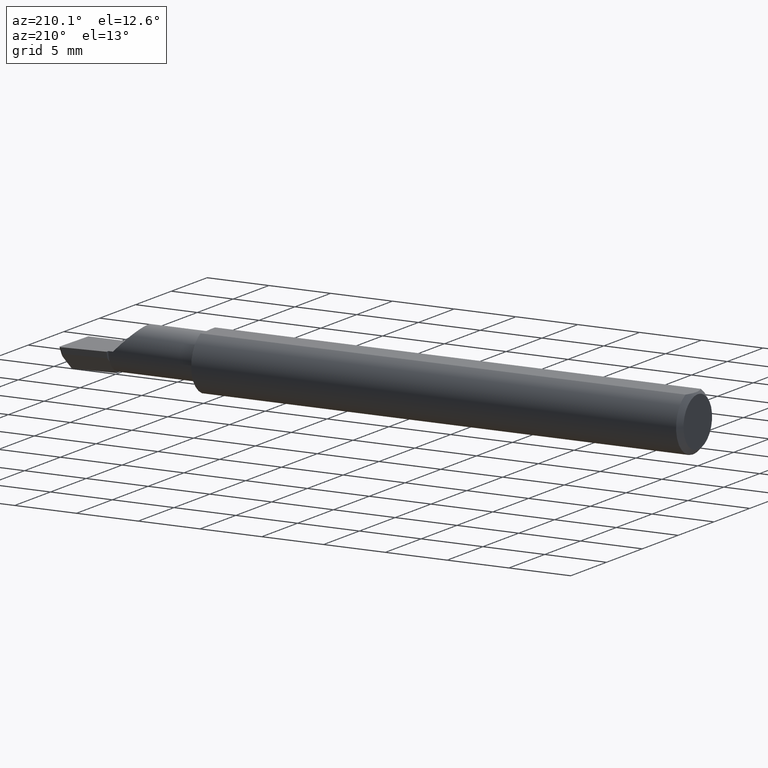
[diagram: clean part render]
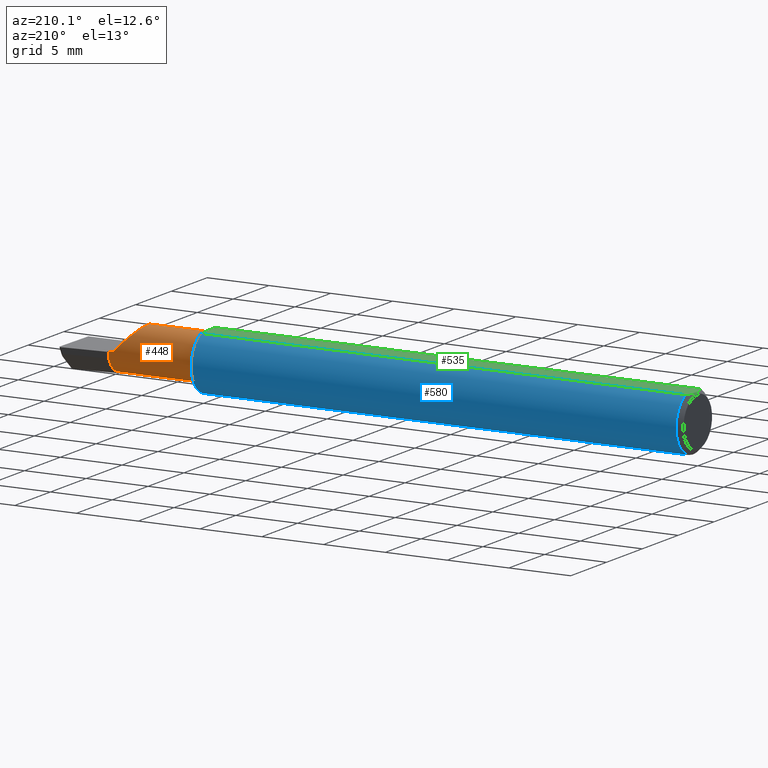
[diagram: same view with three faces highlighted in distinct colors, each labeled with its STEP entity id]
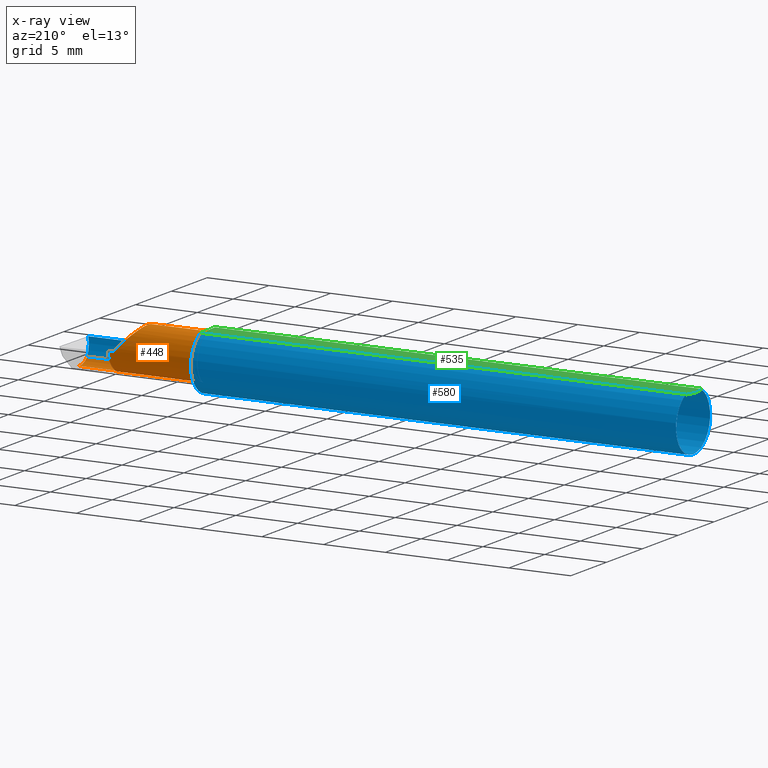
[diagram: x-ray of the same camera — body ghosted, the three highlighted faces saturated]
A machine part, auxiliary view with three faces highlighted in distinct colors.
The next image is the same camera in x-ray (body ghosted, the three faces saturated) — at least one of them is partly hidden behind the body in this view.
Their STEP definitions:

[orange] entity #448 — the highlighted cylindrical surface (edge-blend (fillet) strip) has radius 1.8009 mm, axis along (-1, -0, -0).
#6 = CARTESIAN_POINT ( 'NONE',  ( 1.854999999999999982, -0.03049999999999999586, 0.0000000000000000000 ) ) ;
#12 = VERTEX_POINT ( 'NONE', #555 ) ;
#23 = CARTESIAN_POINT ( 'NONE',  ( 1.988806546520622609, -0.03049999999999999586, -0.07090000000000000469 ) ) ;
#24 = VERTEX_POINT ( 'NONE', #108 ) ;
#27 = CARTESIAN_POINT ( 'NONE',  ( 1.584999999999999964, -0.07646557377049212345, 0.05398125626501703439 ) ) ;
#32 = CIRCLE ( 'NONE', #240, 0.07089999999999997693 ) ;
#40 = VERTEX_POINT ( 'NONE', #129 ) ;
#46 = CARTESIAN_POINT ( 'NONE',  ( 1.988806546520622609, -0.03049999999999999586, -0.07090000000000000469 ) ) ;
#47 = AXIS2_PLACEMENT_3D ( 'NONE', #450, #187, #179 ) ;
#48 = CARTESIAN_POINT ( 'NONE',  ( 1.769987205483423143, 0.04039999999999997066, 0.07001279451657603514 ) ) ;
#54 = CARTESIAN_POINT ( 'NONE',  ( 1.989680968235101988, -0.07646557377049188753, -0.05398125626501726337 ) ) ;
#55 = ORIENTED_EDGE ( 'NONE', *, *, #561, .F. ) ;
#72 = CARTESIAN_POINT ( 'NONE',  ( 1.854999999999999982, -0.03049999999999999586, 0.0000000000000000000 ) ) ;
#83 = CARTESIAN_POINT ( 'NONE',  ( 1.786018743734982150, -0.07646557377049197080, 0.05398125626501716623 ) ) ;
#84 = ORIENTED_EDGE ( 'NONE', *, *, #311, .T. ) ;
#89 = DIRECTION ( 'NONE',  ( -1.000000000000000000, -4.268512490100411279E-18, -0.0000000000000000000 ) ) ;
#107 = EDGE_CURVE ( 'NONE', #435, #40, #649, .T. ) ;
#108 = CARTESIAN_POINT ( 'NONE',  ( 1.854999999999999982, -0.03049999999999999586, -0.07090000000000000469 ) ) ;
#109 = DIRECTION ( 'NONE',  ( 0.0000000000000000000, -1.000000000000000000, 0.0000000000000000000 ) ) ;
#111 = LINE ( 'NONE', #486, #340 ) ;
#121 = VERTEX_POINT ( 'NONE', #83 ) ;
#129 = CARTESIAN_POINT ( 'NONE',  ( 1.854999999999999982, 0.04040000000000000535, 1.030335658007946440E-15 ) ) ;
#146 = ORIENTED_EDGE ( 'NONE', *, *, #385, .T. ) ;
#147 =( BOUNDED_CURVE ( )  B_SPLINE_CURVE ( 3, ( #244, #544, #48, #216 ),
 .UNSPECIFIED., .F., .T. ) 
 B_SPLINE_CURVE_WITH_KNOTS ( ( 4, 4 ),
 ( 5.577815324852163137, 7.853981633974482790 ),
 .UNSPECIFIED. ) 
 CURVE ( )  GEOMETRIC_REPRESENTATION_ITEM ( )  RATIONAL_B_SPLINE_CURVE ( ( 1.000000000000000000, 0.6128902971210721251, 0.6128902971210721251, 1.000000000000000000 ) ) 
 REPRESENTATION_ITEM ( '' )  );
#150 = CARTESIAN_POINT ( 'NONE',  ( -3.026375355475530641E-19, 0.04039999999999996372, 1.030335658007946046E-15 ) ) ;
#151 = DIRECTION ( 'NONE',  ( 1.000000000000000000, 4.268512490100411279E-18, 0.0000000000000000000 ) ) ;
#156 = VERTEX_POINT ( 'NONE', #46 ) ;
#160 = DIRECTION ( 'NONE',  ( 1.000000000000000000, 4.268512490100411279E-18, 0.0000000000000000000 ) ) ;
#170 = CARTESIAN_POINT ( 'NONE',  ( 2.000000000000000000, -0.03049999999999999586, -0.07090000000000000469 ) ) ;
#171 = ORIENTED_EDGE ( 'NONE', *, *, #430, .T. ) ;
#179 = DIRECTION ( 'NONE',  ( 0.0000000000000000000, -1.000000000000000000, 0.0000000000000000000 ) ) ;
#183 = CIRCLE ( 'NONE', #47, 0.07089999999999996305 ) ;
#184 = VECTOR ( 'NONE', #160, 39.37007874015748143 ) ;
#187 = DIRECTION ( 'NONE',  ( -1.000000000000000000, -4.268512490100411279E-18, -0.0000000000000000000 ) ) ;
#191 = CARTESIAN_POINT ( 'NONE',  ( 0.0000000000000000000, -0.03050000000000000627, 0.0000000000000000000 ) ) ;
#216 = CARTESIAN_POINT ( 'NONE',  ( 1.840000000000000080, 0.04039999999999989433, 1.959434878635762025E-17 ) ) ;
#218 = CARTESIAN_POINT ( 'NONE',  ( 1.989680968235101988, -0.07646557377049188753, -0.05398125626501726337 ) ) ;
#225 = LINE ( 'NONE', #170, #254 ) ;
#240 = AXIS2_PLACEMENT_3D ( 'NONE', #6, #299, #109 ) ;
#244 = CARTESIAN_POINT ( 'NONE',  ( 1.786018743734982150, -0.07646557377049197080, 0.05398125626501716623 ) ) ;
#247 = CARTESIAN_POINT ( 'NONE',  ( 1.584999999999999964, -0.07646557377049209570, -0.05398125626501706908 ) ) ;
#254 = VECTOR ( 'NONE', #466, 39.37007874015748143 ) ;
#262 = CARTESIAN_POINT ( 'NONE',  ( 1.988360720229885636, -0.04752541915734222189, -0.07089999999999997693 ) ) ;
#284 = LINE ( 'NONE', #406, #184 ) ;
#285 = DIRECTION ( 'NONE',  ( 4.268512490100412049E-18, -1.000000000000000000, 0.0000000000000000000 ) ) ;
#286 = DIRECTION ( 'NONE',  ( 0.0000000000000000000, -1.000000000000000000, 0.0000000000000000000 ) ) ;
#299 = DIRECTION ( 'NONE',  ( 1.000000000000000000, 4.268512490100411279E-18, 0.0000000000000000000 ) ) ;
#300 = DIRECTION ( 'NONE',  ( -1.000000000000000000, -4.268512490100411279E-18, -0.0000000000000000000 ) ) ;
#311 = EDGE_CURVE ( 'NONE', #40, #333, #518, .T. ) ;
#314 = CARTESIAN_POINT ( 'NONE',  ( 1.854999999999999982, -0.03049999999999999586, 0.0000000000000000000 ) ) ;
#319 = AXIS2_PLACEMENT_3D ( 'NONE', #191, #608, #285 ) ;
#328 = CARTESIAN_POINT ( 'NONE',  ( 1.840000000000000080, 0.04039999999999989433, 1.959434878635762025E-17 ) ) ;
#333 = VERTEX_POINT ( 'NONE', #436 ) ;
#334 = FACE_OUTER_BOUND ( 'NONE', #551, .T. ) ;
#335 = AXIS2_PLACEMENT_3D ( 'NONE', #72, #89, #571 ) ;
#340 = VECTOR ( 'NONE', #592, 39.37007874015748143 ) ;
#346 = VECTOR ( 'NONE', #151, 39.37007874015748143 ) ;
#366 = ORIENTED_EDGE ( 'NONE', *, *, #107, .T. ) ;
#385 = EDGE_CURVE ( 'NONE', #614, #121, #284, .T. ) ;
#394 = AXIS2_PLACEMENT_3D ( 'NONE', #314, #300, #286 ) ;
#406 = CARTESIAN_POINT ( 'NONE',  ( 1.719999999999999973, -0.07646557377049188753, 0.05398125626501726337 ) ) ;
#419 = CARTESIAN_POINT ( 'NONE',  ( 1.988664666329833519, -0.06350290078668616167, -0.06501910055627763141 ) ) ;
#423 = VERTEX_POINT ( 'NONE', #54 ) ;
#430 = EDGE_CURVE ( 'NONE', #121, #435, #147, .T. ) ;
#435 = VERTEX_POINT ( 'NONE', #328 ) ;
#436 = CARTESIAN_POINT ( 'NONE',  ( 1.854999999999999982, 0.03289115998609075386, -0.03175485530777685805 ) ) ;
#448 = ADVANCED_FACE ( 'NONE', ( #334 ), #610, .T. ) ;
#449 = VERTEX_POINT ( 'NONE', #247 ) ;
#450 = CARTESIAN_POINT ( 'NONE',  ( 1.584999999999999964, -0.03049999999999999586, 0.0000000000000000000 ) ) ;
#460 =( BOUNDED_CURVE ( )  B_SPLINE_CURVE ( 3, ( #218, #419, #262, #23 ),
 .UNSPECIFIED., .F., .T. ) 
 B_SPLINE_CURVE_WITH_KNOTS ( ( 4, 4 ),
 ( 5.787864769132275100, 6.493234751459696419 ),
 .UNSPECIFIED. ) 
 CURVE ( )  GEOMETRIC_REPRESENTATION_ITEM ( )  RATIONAL_B_SPLINE_CURVE ( ( 1.000000000000000000, 0.9589657668801496726, 0.9589657668801496726, 1.000000000000000000 ) ) 
 REPRESENTATION_ITEM ( '' )  );
#466 = DIRECTION ( 'NONE',  ( -1.000000000000000000, 5.691349986800549142E-18, -0.0000000000000000000 ) ) ;
#486 = CARTESIAN_POINT ( 'NONE',  ( 1.719999999999999973, -0.07646557377049188753, -0.05398125626501726337 ) ) ;
#518 = CIRCLE ( 'NONE', #394, 0.07089999999999999081 ) ;
#544 = CARTESIAN_POINT ( 'NONE',  ( 1.740628359091399346, -0.02315981068686319075, 0.09937164090859931798 ) ) ;
#545 = EDGE_CURVE ( 'NONE', #423, #449, #111, .T. ) ;
#551 = EDGE_LOOP ( 'NONE', ( #55, #637, #578, #146, #171, #366, #84, #618, #651, #594 ) ) ;
#553 = EDGE_CURVE ( 'NONE', #12, #24, #633, .T. ) ;
#555 = CARTESIAN_POINT ( 'NONE',  ( 1.854999999999999982, 0.003160401389698424320, -0.06240021937689311377 ) ) ;
#561 = EDGE_CURVE ( 'NONE', #423, #156, #460, .T. ) ;
#571 = DIRECTION ( 'NONE',  ( 0.0000000000000000000, -1.000000000000000000, 0.0000000000000000000 ) ) ;
#578 = ORIENTED_EDGE ( 'NONE', *, *, #612, .F. ) ;
#586 = EDGE_CURVE ( 'NONE', #156, #24, #225, .T. ) ;
#592 = DIRECTION ( 'NONE',  ( -1.000000000000000000, -4.268512490100411279E-18, -0.0000000000000000000 ) ) ;
#594 = ORIENTED_EDGE ( 'NONE', *, *, #586, .F. ) ;
#602 = EDGE_CURVE ( 'NONE', #12, #333, #32, .T. ) ;
#608 = DIRECTION ( 'NONE',  ( -1.000000000000000000, -4.268512490100411279E-18, -0.0000000000000000000 ) ) ;
#610 = CYLINDRICAL_SURFACE ( 'NONE', #319, 0.07089999999999996305 ) ;
#612 = EDGE_CURVE ( 'NONE', #614, #449, #183, .T. ) ;
#614 = VERTEX_POINT ( 'NONE', #27 ) ;
#618 = ORIENTED_EDGE ( 'NONE', *, *, #602, .F. ) ;
#633 = CIRCLE ( 'NONE', #335, 0.07089999999999999081 ) ;
#637 = ORIENTED_EDGE ( 'NONE', *, *, #545, .T. ) ;
#649 = LINE ( 'NONE', #150, #346 ) ;
#651 = ORIENTED_EDGE ( 'NONE', *, *, #553, .T. ) ;

[blue] entity #580 — the highlighted cylindrical surface (edge-blend (fillet) strip) has radius 2.3774 mm, axis along (-1, -0, -0).
#25 = CARTESIAN_POINT ( 'NONE',  ( 1.572379481194433160, -0.06851133057105314450, -0.06386523205972809147 ) ) ;
#26 = DIRECTION ( 'NONE',  ( 0.0000000000000000000, 0.0000000000000000000, 1.000000000000000000 ) ) ;
#27 = CARTESIAN_POINT ( 'NONE',  ( 1.584999999999999964, -0.07646557377049212345, 0.05398125626501703439 ) ) ;
#31 = DIRECTION ( 'NONE',  ( -1.000000000000000000, -0.0000000000000000000, -0.0000000000000000000 ) ) ;
#37 = CARTESIAN_POINT ( 'NONE',  ( 1.577475890146723403, -0.07388913376859282400, 0.05747801488572825551 ) ) ;
#44 = CARTESIAN_POINT ( 'NONE',  ( 1.559999999999993392, -0.01550498344099977138, -0.09260523827686174825 ) ) ;
#53 = CARTESIAN_POINT ( 'NONE',  ( 1.568064680686318324, -0.06127374973417914344, -0.07108395546218125582 ) ) ;
#54 = CARTESIAN_POINT ( 'NONE',  ( 1.989680968235101988, -0.07646557377049188753, -0.05398125626501726337 ) ) ;
#56 = DIRECTION ( 'NONE',  ( -1.000000000000000000, -0.0000000000000000000, -0.0000000000000000000 ) ) ;
#68 = CARTESIAN_POINT ( 'NONE',  ( 1.574015914171515096, -0.07074360550885062937, -0.06136535069389129071 ) ) ;
#82 = CARTESIAN_POINT ( 'NONE',  ( 1.564271705382763500, -0.04994636227297237496, 0.07964666709476365958 ) ) ;
#83 = CARTESIAN_POINT ( 'NONE',  ( 1.786018743734982150, -0.07646557377049197080, 0.05398125626501716623 ) ) ;
#85 = CARTESIAN_POINT ( 'NONE',  ( 0.01499999999999999598, 0.0000000000000000000, -0.09360000000000001652 ) ) ;
#88 = CARTESIAN_POINT ( 'NONE',  ( 1.786018743734982150, -0.07646557377049197080, 0.05398125626501716623 ) ) ;
#90 = CARTESIAN_POINT ( 'NONE',  ( 1.801938678439108932, -0.08770433171880964718, 0.03806132156089073182 ) ) ;
#95 = EDGE_CURVE ( 'NONE', #482, #639, #236, .T. ) ;
#103 = VERTEX_POINT ( 'NONE', #420 ) ;
#105 = CIRCLE ( 'NONE', #473, 0.09360000000000001652 ) ;
#111 = LINE ( 'NONE', #486, #340 ) ;
#116 = ORIENTED_EDGE ( 'NONE', *, *, #326, .T. ) ;
#121 = VERTEX_POINT ( 'NONE', #83 ) ;
#127 = CARTESIAN_POINT ( 'NONE',  ( 5.659797890829555466E-31, -0.09359999999999998876, 1.030335658007946046E-15 ) ) ;
#134 = CARTESIAN_POINT ( 'NONE',  ( 1.576159648777483158, -0.07275446879445285342, 0.05891786234966334829 ) ) ;
#137 = CARTESIAN_POINT ( 'NONE',  ( 0.01499999999999999598, 0.0000000000000000000, 0.0000000000000000000 ) ) ;
#154 = EDGE_CURVE ( 'NONE', #177, #121, #374, .T. ) ;
#157 = CARTESIAN_POINT ( 'NONE',  ( 1.820512722067858524, -0.09360000000000001652, 0.01948727793214129894 ) ) ;
#158 = CARTESIAN_POINT ( 'NONE',  ( 1.840000000000000080, -0.09360000000000005815, 1.959434878635762025E-17 ) ) ;
#160 = DIRECTION ( 'NONE',  ( 1.000000000000000000, 4.268512490100411279E-18, 0.0000000000000000000 ) ) ;
#169 = CARTESIAN_POINT ( 'NONE',  ( 1.584999999999999964, -0.07646557377049212345, 0.05398125626501703439 ) ) ;
#173 = CARTESIAN_POINT ( 'NONE',  ( 0.0000000000000000000, 0.0000000000000000000, 0.0000000000000000000 ) ) ;
#177 = VERTEX_POINT ( 'NONE', #591 ) ;
#184 = VECTOR ( 'NONE', #160, 39.37007874015748143 ) ;
#189 = CARTESIAN_POINT ( 'NONE',  ( 0.01499999999999999944, -0.04209513035969835587, 0.08360000000000000764 ) ) ;
#190 = VERTEX_POINT ( 'NONE', #189 ) ;
#201 = ORIENTED_EDGE ( 'NONE', *, *, #214, .F. ) ;
#202 = B_SPLINE_CURVE_WITH_KNOTS ( 'NONE', 3,
 ( #273, #417, #310, #534, #461, #68, #25, #53, #257, #290, #564, #439, #44, #616 ),
 .UNSPECIFIED., .F., .F.,
 ( 4, 2, 2, 2, 2, 2, 4 ),
 ( 1.959158530842610525E-07, 0.0001424059935984809603, 0.0002846160713438776512, 0.0005690362268346715749, 0.001137876537816250857, 0.001706716848797830031, 0.002275557159779408988 ),
 .UNSPECIFIED. ) ;
#207 = CARTESIAN_POINT ( 'NONE',  ( 0.01499999999999999598, 0.04209513035969837669, 0.08360000000000000764 ) ) ;
#209 = ORIENTED_EDGE ( 'NONE', *, *, #154, .T. ) ;
#210 = EDGE_LOOP ( 'NONE', ( #431, #116, #524, #209, #327, #201, #380, #429, #224, #595, #495, #410 ) ) ;
#214 = EDGE_CURVE ( 'NONE', #365, #614, #625, .T. ) ;
#220 = CARTESIAN_POINT ( 'NONE',  ( 1.559999999999999831, -0.008104918032786992757, -0.09324843325054746335 ) ) ;
#224 = ORIENTED_EDGE ( 'NONE', *, *, #95, .F. ) ;
#226 = LINE ( 'NONE', #391, #383 ) ;
#227 = CARTESIAN_POINT ( 'NONE',  ( 1.562801882726447822, -0.04209513036031865135, 0.08360000000000000764 ) ) ;
#230 = CARTESIAN_POINT ( 'NONE',  ( 1.989680968235101988, -0.07646557377049188753, -0.05398125626501726337 ) ) ;
#236 = CIRCLE ( 'NONE', #646, 0.09360000000000001652 ) ;
#238 = VERTEX_POINT ( 'NONE', #658 ) ;
#242 = CARTESIAN_POINT ( 'NONE',  ( 0.01499999999999999598, 0.0000000000000000000, 0.0000000000000000000 ) ) ;
#247 = CARTESIAN_POINT ( 'NONE',  ( 1.584999999999999964, -0.07646557377049209570, -0.05398125626501706908 ) ) ;
#248 = EDGE_CURVE ( 'NONE', #365, #190, #226, .T. ) ;
#253 = CARTESIAN_POINT ( 'NONE',  ( 1.995862624392067852, -0.09360000000000009979, -6.605666309584449409E-17 ) ) ;
#256 = DIRECTION ( 'NONE',  ( 0.0000000000000000000, 0.0000000000000000000, 1.000000000000000000 ) ) ;
#257 = CARTESIAN_POINT ( 'NONE',  ( 1.566019021117886378, -0.05561872204144574505, -0.07562530238090230117 ) ) ;
#267 = EDGE_CURVE ( 'NONE', #639, #190, #105, .T. ) ;
#272 = CARTESIAN_POINT ( 'NONE',  ( 1.993469067315748244, -0.09360000000000004428, -0.01948727793214142037 ) ) ;
#273 = CARTESIAN_POINT ( 'NONE',  ( 1.584999999999999964, -0.07646557377049209570, -0.05398125626501706908 ) ) ;
#281 = CYLINDRICAL_SURFACE ( 'NONE', #601, 0.09360000000000001652 ) ;
#284 = LINE ( 'NONE', #406, #184 ) ;
#289 = EDGE_CURVE ( 'NONE', #565, #238, #390, .T. ) ;
#290 = CARTESIAN_POINT ( 'NONE',  ( 1.562866246175463436, -0.04341922408232368885, -0.08323100132652178074 ) ) ;
#296 = EDGE_CURVE ( 'NONE', #482, #238, #396, .T. ) ;
#310 = CARTESIAN_POINT ( 'NONE',  ( 1.581350203328816484, -0.07594758393974103405, -0.05472071011664903645 ) ) ;
#324 = DIRECTION ( 'NONE',  ( 0.0000000000000000000, 0.0000000000000000000, 1.000000000000000000 ) ) ;
#326 = EDGE_CURVE ( 'NONE', #423, #103, #521, .T. ) ;
#327 = ORIENTED_EDGE ( 'NONE', *, *, #385, .F. ) ;
#339 = CARTESIAN_POINT ( 'NONE',  ( 1.580716106491990125, -0.07573797007891092115, 0.05501896193679952501 ) ) ;
#340 = VECTOR ( 'NONE', #592, 39.37007874015748143 ) ;
#360 = AXIS2_PLACEMENT_3D ( 'NONE', #603, #427, #432 ) ;
#365 = VERTEX_POINT ( 'NONE', #227 ) ;
#374 =( BOUNDED_CURVE ( )  B_SPLINE_CURVE ( 3, ( #158, #157, #90, #88 ),
 .UNSPECIFIED., .F., .F. ) 
 B_SPLINE_CURVE_WITH_KNOTS ( ( 4, 4 ),
 ( 4.712388980384689674, 5.327100436569645936 ),
 .UNSPECIFIED. ) 
 CURVE ( )  GEOMETRIC_REPRESENTATION_ITEM ( )  RATIONAL_B_SPLINE_CURVE ( ( 1.000000000000000000, 0.9687579316594157053, 0.9687579316594157053, 1.000000000000000000 ) ) 
 REPRESENTATION_ITEM ( '' )  );
#380 = ORIENTED_EDGE ( 'NONE', *, *, #248, .T. ) ;
#383 = VECTOR ( 'NONE', #56, 39.37007874015748143 ) ;
#385 = EDGE_CURVE ( 'NONE', #614, #121, #284, .T. ) ;
#386 = CARTESIAN_POINT ( 'NONE',  ( 1.566280435687897876, -0.05700135229382551766, 0.07471156184488421392 ) ) ;
#390 = CIRCLE ( 'NONE', #360, 0.09360000000000001652 ) ;
#391 = CARTESIAN_POINT ( 'NONE',  ( 0.0000000000000000000, -0.04209513035969835587, 0.08360000000000000764 ) ) ;
#396 = LINE ( 'NONE', #664, #530 ) ;
#403 = DIRECTION ( 'NONE',  ( -1.000000000000000000, -0.0000000000000000000, -0.0000000000000000000 ) ) ;
#406 = CARTESIAN_POINT ( 'NONE',  ( 1.719999999999999973, -0.07646557377049188753, 0.05398125626501726337 ) ) ;
#410 = ORIENTED_EDGE ( 'NONE', *, *, #660, .F. ) ;
#414 = VECTOR ( 'NONE', #621, 39.37007874015748143 ) ;
#417 = CARTESIAN_POINT ( 'NONE',  ( 1.583095068269287031, -0.07646557377049210957, -0.05398125626501700663 ) ) ;
#420 = CARTESIAN_POINT ( 'NONE',  ( 1.995862624392067852, -0.09360000000000009979, -6.605666309584449409E-17 ) ) ;
#423 = VERTEX_POINT ( 'NONE', #54 ) ;
#427 = DIRECTION ( 'NONE',  ( 1.000000000000000000, 4.268512490100411279E-18, 0.0000000000000000000 ) ) ;
#429 = ORIENTED_EDGE ( 'NONE', *, *, #267, .F. ) ;
#431 = ORIENTED_EDGE ( 'NONE', *, *, #545, .F. ) ;
#432 = DIRECTION ( 'NONE',  ( 0.0000000000000000000, 1.000000000000000000, 0.0000000000000000000 ) ) ;
#439 = CARTESIAN_POINT ( 'NONE',  ( 1.560329054248859482, -0.02276897781908351209, -0.09108484809305525398 ) ) ;
#449 = VERTEX_POINT ( 'NONE', #247 ) ;
#461 = CARTESIAN_POINT ( 'NONE',  ( 1.577244873747906784, -0.07364233512257582770, -0.05779374943917662405 ) ) ;
#473 = AXIS2_PLACEMENT_3D ( 'NONE', #242, #542, #324 ) ;
#482 = VERTEX_POINT ( 'NONE', #207 ) ;
#486 = CARTESIAN_POINT ( 'NONE',  ( 1.719999999999999973, -0.07646557377049188753, -0.05398125626501726337 ) ) ;
#489 = CARTESIAN_POINT ( 'NONE',  ( 1.991342063257270478, -0.08770433171880961942, -0.03806132156089087060 ) ) ;
#495 = ORIENTED_EDGE ( 'NONE', *, *, #289, .F. ) ;
#501 = CARTESIAN_POINT ( 'NONE',  ( 1.562801882726447822, -0.04209513036031865135, 0.08360000000000000764 ) ) ;
#510 = FACE_OUTER_BOUND ( 'NONE', #210, .T. ) ;
#513 = EDGE_CURVE ( 'NONE', #103, #177, #655, .T. ) ;
#521 =( BOUNDED_CURVE ( )  B_SPLINE_CURVE ( 3, ( #230, #489, #272, #253 ),
 .UNSPECIFIED., .F., .F. ) 
 B_SPLINE_CURVE_WITH_KNOTS ( ( 4, 4 ),
 ( 0.7460354263298288879, 1.360746882514785705 ),
 .UNSPECIFIED. ) 
 CURVE ( )  GEOMETRIC_REPRESENTATION_ITEM ( )  RATIONAL_B_SPLINE_CURVE ( ( 1.000000000000000000, 0.9687579316594155943, 0.9687579316594155943, 1.000000000000000000 ) ) 
 REPRESENTATION_ITEM ( '' )  );
#524 = ORIENTED_EDGE ( 'NONE', *, *, #513, .T. ) ;
#530 = VECTOR ( 'NONE', #657, 39.37007874015748143 ) ;
#534 = CARTESIAN_POINT ( 'NONE',  ( 1.578436874164509840, -0.07452398798010734238, -0.05664421274495003156 ) ) ;
#539 = CARTESIAN_POINT ( 'NONE',  ( 1.570886223621647648, -0.06626224018846513242, 0.06624030822967877374 ) ) ;
#542 = DIRECTION ( 'NONE',  ( -1.000000000000000000, -0.0000000000000000000, -0.0000000000000000000 ) ) ;
#545 = EDGE_CURVE ( 'NONE', #423, #449, #111, .T. ) ;
#547 = CARTESIAN_POINT ( 'NONE',  ( 1.582734503266368886, -0.07646557377049206794, 0.05398125626501700663 ) ) ;
#564 = CARTESIAN_POINT ( 'NONE',  ( 1.561756004422870880, -0.03669390866074721813, -0.08642009587044903463 ) ) ;
#565 = VERTEX_POINT ( 'NONE', #220 ) ;
#580 = ADVANCED_FACE ( 'NONE', ( #510 ), #281, .T. ) ;
#581 = CARTESIAN_POINT ( 'NONE',  ( 1.572663484135164991, -0.06910045470751310925, 0.06324836830213464989 ) ) ;
#591 = CARTESIAN_POINT ( 'NONE',  ( 1.840000000000000080, -0.09360000000000005815, 1.959434878635762025E-17 ) ) ;
#592 = DIRECTION ( 'NONE',  ( -1.000000000000000000, -4.268512490100411279E-18, -0.0000000000000000000 ) ) ;
#595 = ORIENTED_EDGE ( 'NONE', *, *, #296, .T. ) ;
#601 = AXIS2_PLACEMENT_3D ( 'NONE', #173, #403, #256 ) ;
#603 = CARTESIAN_POINT ( 'NONE',  ( 1.559999999999999831, 0.0000000000000000000, 0.0000000000000000000 ) ) ;
#614 = VERTEX_POINT ( 'NONE', #27 ) ;
#616 = CARTESIAN_POINT ( 'NONE',  ( 1.559999999999999831, -0.008104918032786992757, -0.09324843325054746335 ) ) ;
#621 = DIRECTION ( 'NONE',  ( -1.000000000000000000, -0.0000000000000000000, -0.0000000000000000000 ) ) ;
#625 = B_SPLINE_CURVE_WITH_KNOTS ( 'NONE', 3,
 ( #501, #82, #386, #539, #581, #134, #37, #339, #547, #169 ),
 .UNSPECIFIED., .F., .F.,
 ( 4, 2, 2, 2, 4 ),
 ( 4.457974472495537850E-07, 0.0006718060699091178267, 0.001007486206140052005, 0.001175326274255524082, 0.001343166342370996375 ),
 .UNSPECIFIED. ) ;
#639 = VERTEX_POINT ( 'NONE', #85 ) ;
#646 = AXIS2_PLACEMENT_3D ( 'NONE', #137, #31, #26 ) ;
#655 = LINE ( 'NONE', #127, #414 ) ;
#657 = DIRECTION ( 'NONE',  ( 1.000000000000000000, 0.0000000000000000000, 0.0000000000000000000 ) ) ;
#658 = CARTESIAN_POINT ( 'NONE',  ( 1.559999999999999831, 0.04209513035969836975, 0.08360000000000000764 ) ) ;
#660 = EDGE_CURVE ( 'NONE', #449, #565, #202, .T. ) ;
#664 = CARTESIAN_POINT ( 'NONE',  ( 0.0000000000000000000, 0.04209513035969837669, 0.08360000000000000764 ) ) ;

[green] entity #535 — the highlighted planar face has unit normal (0, -0, -1).
#35 = CARTESIAN_POINT ( 'NONE',  ( 0.005000000000000223883, 0.007308422719211823959, 0.08360000000000000764 ) ) ;
#45 = ORIENTED_EDGE ( 'NONE', *, *, #451, .F. ) ;
#49 = EDGE_LOOP ( 'NONE', ( #446, #45, #364, #552, #164, #447 ) ) ;
#56 = DIRECTION ( 'NONE',  ( -1.000000000000000000, -0.0000000000000000000, -0.0000000000000000000 ) ) ;
#58 = EDGE_CURVE ( 'NONE', #531, #482, #636, .T. ) ;
#86 = CARTESIAN_POINT ( 'NONE',  ( 1.559999999999999831, 0.006771783253975776143, 0.08360000000000003539 ) ) ;
#106 = VECTOR ( 'NONE', #579, 39.37007874015748143 ) ;
#110 = CARTESIAN_POINT ( 'NONE',  ( 0.009492654797564337166, 0.02859466010166625619, 0.08359999999999997988 ) ) ;
#140 = DIRECTION ( 'NONE',  ( 0.0000000000000000000, -1.189000693621284344E-16, -1.000000000000000000 ) ) ;
#153 = CARTESIAN_POINT ( 'NONE',  ( 1.563100172961548795, -0.02248939038937002033, 0.08360000000000000764 ) ) ;
#164 = ORIENTED_EDGE ( 'NONE', *, *, #418, .F. ) ;
#181 = AXIS2_PLACEMENT_3D ( 'NONE', #232, #140, #234 ) ;
#186 = CARTESIAN_POINT ( 'NONE',  ( 1.562745430550909864, -0.01759363372028110648, 0.08360000000000003539 ) ) ;
#189 = CARTESIAN_POINT ( 'NONE',  ( 0.01499999999999999944, -0.04209513035969835587, 0.08360000000000000764 ) ) ;
#190 = VERTEX_POINT ( 'NONE', #189 ) ;
#205 = CARTESIAN_POINT ( 'NONE',  ( 1.559999999999999831, 0.1436000000000000332, 0.08359999999999999376 ) ) ;
#207 = CARTESIAN_POINT ( 'NONE',  ( 0.01499999999999999598, 0.04209513035969837669, 0.08360000000000000764 ) ) ;
#223 = CARTESIAN_POINT ( 'NONE',  ( 1.563150981066091738, -0.03719006435924352566, 0.08360000000000000764 ) ) ;
#226 = LINE ( 'NONE', #391, #383 ) ;
#227 = CARTESIAN_POINT ( 'NONE',  ( 1.562801882726447822, -0.04209513036031865135, 0.08360000000000000764 ) ) ;
#232 = CARTESIAN_POINT ( 'NONE',  ( 2.000000000000000000, 0.1436000000000000332, 0.08359999999999999376 ) ) ;
#234 = DIRECTION ( 'NONE',  ( 0.0000000000000000000, 1.000000000000000000, -1.189000693621284344E-16 ) ) ;
#238 = VERTEX_POINT ( 'NONE', #658 ) ;
#239 = CARTESIAN_POINT ( 'NONE',  ( 1.561342386211016953, -0.002910845068973703063, 0.08359999999999999376 ) ) ;
#248 = EDGE_CURVE ( 'NONE', #365, #190, #226, .T. ) ;
#264 = CARTESIAN_POINT ( 'NONE',  ( 1.559999999999999831, 0.01648776436477898677, 0.08360000000000000764 ) ) ;
#276 = CARTESIAN_POINT ( 'NONE',  ( 0.005000000000000236026, 1.025183009042025117E-17, 0.08360000000000000764 ) ) ;
#296 = EDGE_CURVE ( 'NONE', #482, #238, #396, .T. ) ;
#305 = PLANE ( 'NONE',  #181 ) ;
#312 = CARTESIAN_POINT ( 'NONE',  ( 0.005975039161239525769, -0.01453776427033148279, 0.08359999999999997988 ) ) ;
#330 = CARTESIAN_POINT ( 'NONE',  ( 0.009539353699420832430, -0.02875682547511371895, 0.08360000000000000764 ) ) ;
#351 = CARTESIAN_POINT ( 'NONE',  ( 0.01499999999999999598, 0.04209513035969837669, 0.08360000000000000764 ) ) ;
#361 = CARTESIAN_POINT ( 'NONE',  ( 0.005000000000000236026, 1.025183009042025117E-17, 0.08360000000000000764 ) ) ;
#364 = ORIENTED_EDGE ( 'NONE', *, *, #296, .F. ) ;
#365 = VERTEX_POINT ( 'NONE', #227 ) ;
#383 = VECTOR ( 'NONE', #56, 39.37007874015748143 ) ;
#387 = EDGE_CURVE ( 'NONE', #428, #365, #388, .T. ) ;
#388 = B_SPLINE_CURVE_WITH_KNOTS ( 'NONE', 3,
 ( #264, #86, #239, #186, #153, #634, #223, #536 ),
 .UNSPECIFIED., .F., .F.,
 ( 4, 2, 2, 4 ),
 ( 0.009645755411050985564, 0.01039251847056327574, 0.01076590000031941996, 0.01113928153007556418 ),
 .UNSPECIFIED. ) ;
#391 = CARTESIAN_POINT ( 'NONE',  ( 0.0000000000000000000, -0.04209513035969835587, 0.08360000000000000764 ) ) ;
#396 = LINE ( 'NONE', #664, #530 ) ;
#398 = CARTESIAN_POINT ( 'NONE',  ( 1.559999999999999831, 0.01648776436477898677, 0.08360000000000000764 ) ) ;
#418 = EDGE_CURVE ( 'NONE', #190, #531, #526, .T. ) ;
#428 = VERTEX_POINT ( 'NONE', #398 ) ;
#446 = ORIENTED_EDGE ( 'NONE', *, *, #387, .F. ) ;
#447 = ORIENTED_EDGE ( 'NONE', *, *, #248, .F. ) ;
#451 = EDGE_CURVE ( 'NONE', #238, #428, #572, .T. ) ;
#479 = CARTESIAN_POINT ( 'NONE',  ( 0.01203648650249650523, 0.03550565407121123590, 0.08360000000000000764 ) ) ;
#482 = VERTEX_POINT ( 'NONE', #207 ) ;
#484 = CARTESIAN_POINT ( 'NONE',  ( 0.005981829149300850468, 0.01454044632356567279, 0.08360000000000000764 ) ) ;
#512 = CARTESIAN_POINT ( 'NONE',  ( 0.005000000000000236026, 1.025183009042025117E-17, 0.08360000000000000764 ) ) ;
#526 = B_SPLINE_CURVE_WITH_KNOTS ( 'NONE', 3,
 ( #560, #643, #330, #312, #574, #276 ),
 .UNSPECIFIED., .F., .F.,
 ( 4, 2, 4 ),
 ( 0.005785415439423114564, 0.006333348270144337384, 0.006881281100865560205 ),
 .UNSPECIFIED. ) ;
#530 = VECTOR ( 'NONE', #657, 39.37007874015748143 ) ;
#531 = VERTEX_POINT ( 'NONE', #361 ) ;
#535 = ADVANCED_FACE ( 'NONE', ( #615 ), #305, .F. ) ;
#536 = CARTESIAN_POINT ( 'NONE',  ( 1.562801882726447822, -0.04209513036031865135, 0.08360000000000000764 ) ) ;
#552 = ORIENTED_EDGE ( 'NONE', *, *, #58, .F. ) ;
#560 = CARTESIAN_POINT ( 'NONE',  ( 0.01499999999999999944, -0.04209513035969835587, 0.08360000000000000764 ) ) ;
#572 = LINE ( 'NONE', #205, #106 ) ;
#574 = CARTESIAN_POINT ( 'NONE',  ( 0.005000000000000228220, -0.007328888879231052964, 0.08360000000000000764 ) ) ;
#579 = DIRECTION ( 'NONE',  ( 4.268512490100411279E-18, -1.000000000000000000, 1.189000693621284344E-16 ) ) ;
#615 = FACE_OUTER_BOUND ( 'NONE', #49, .T. ) ;
#634 = CARTESIAN_POINT ( 'NONE',  ( 1.563304846087257394, -0.03228758060674630226, 0.08360000000000003539 ) ) ;
#636 = B_SPLINE_CURVE_WITH_KNOTS ( 'NONE', 3,
 ( #512, #35, #484, #110, #479, #351 ),
 .UNSPECIFIED., .F., .F.,
 ( 4, 2, 4 ),
 ( 0.006881281100865560205, 0.007427683811376459971, 0.007974086521887359738 ),
 .UNSPECIFIED. ) ;
#643 = CARTESIAN_POINT ( 'NONE',  ( 0.01206089165507025739, -0.03555991978469312531, 0.08360000000000000764 ) ) ;
#657 = DIRECTION ( 'NONE',  ( 1.000000000000000000, 0.0000000000000000000, 0.0000000000000000000 ) ) ;
#658 = CARTESIAN_POINT ( 'NONE',  ( 1.559999999999999831, 0.04209513035969836975, 0.08360000000000000764 ) ) ;
#664 = CARTESIAN_POINT ( 'NONE',  ( 0.0000000000000000000, 0.04209513035969837669, 0.08360000000000000764 ) ) ;